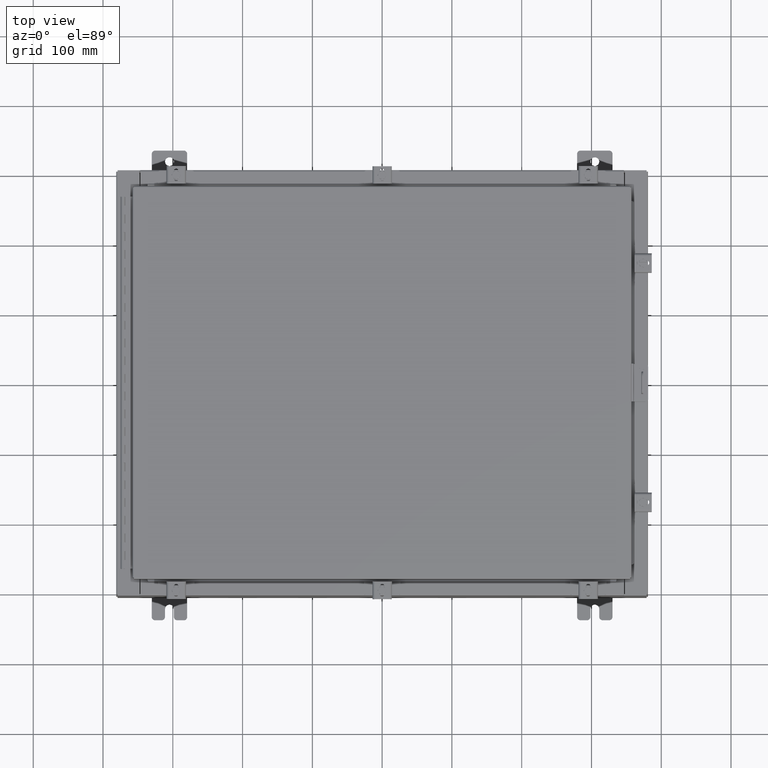
[diagram: clean part render]
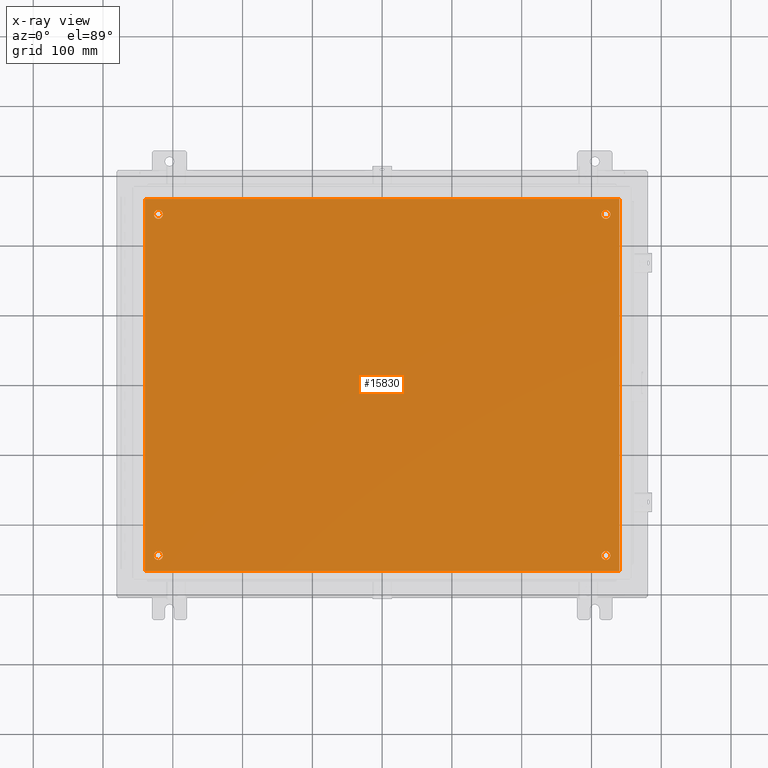
[diagram: x-ray — body ghosted, one internal face saturated and labeled with its STEP entity id]
A machine part, top view, then the same camera in x-ray: the body is ghosted and one INTERNAL B-rep face — a face not visible from any outside direction — is saturated and labeled: STEP entity #15830.
In plain terms, the highlighted planar face has unit normal (0, 0, -1).
Its self-contained STEP definition (entity closure, byte-faithful):
#97 = LINE ( 'NONE', #28424, #13458 ) ;
#567 = VECTOR ( 'NONE', #14439, 39.37007874015748100 ) ;
#1053 = EDGE_CURVE ( 'NONE', #12233, #16172, #19719, .T. ) ;
#1755 = CARTESIAN_POINT ( 'NONE',  ( -12.87499999999999600, -9.625000000000001800, -0.1039999999999999800 ) ) ;
#2405 = EDGE_LOOP ( 'NONE', ( #9861, #17814 ) ) ;
#2578 = CARTESIAN_POINT ( 'NONE',  ( -12.62499999999999800, 9.625000000000001800, -0.1039999999999999800 ) ) ;
#2631 = FACE_BOUND ( 'NONE', #22050, .T. ) ;
#2815 = ORIENTED_EDGE ( 'NONE', *, *, #7326, .F. ) ;
#2914 = ORIENTED_EDGE ( 'NONE', *, *, #15594, .T. ) ;
#3113 = AXIS2_PLACEMENT_3D ( 'NONE', #2578, #20107, #5090 ) ;
#3431 = CARTESIAN_POINT ( 'NONE',  ( -13.38299999999999900, 10.50000000000000200, -0.1040000000000041900 ) ) ;
#3952 = DIRECTION ( 'NONE',  ( -0.0000000000000000000, -0.0000000000000000000, 1.000000000000000000 ) ) ;
#4044 = VERTEX_POINT ( 'NONE', #3431 ) ;
#4961 = CARTESIAN_POINT ( 'NONE',  ( -13.38299999999999900, -10.50000000000000000, -0.1040000000000041900 ) ) ;
#5090 = DIRECTION ( 'NONE',  ( -1.000000000000000000, 0.0000000000000000000, 0.0000000000000000000 ) ) ;
#5153 = ORIENTED_EDGE ( 'NONE', *, *, #7400, .F. ) ;
#5259 = CARTESIAN_POINT ( 'NONE',  ( -12.87499999999999600, 9.625000000000001800, -0.1039999999999999800 ) ) ;
#5874 = EDGE_LOOP ( 'NONE', ( #30351, #8862 ) ) ;
#6597 = CIRCLE ( 'NONE', #3113, 0.2499999999999987000 ) ;
#6606 = DIRECTION ( 'NONE',  ( -0.0000000000000000000, -0.0000000000000000000, 1.000000000000000000 ) ) ;
#7056 = CARTESIAN_POINT ( 'NONE',  ( -12.62499999999999800, 9.625000000000001800, -0.1039999999999999800 ) ) ;
#7326 = EDGE_CURVE ( 'NONE', #4044, #29572, #16223, .T. ) ;
#7400 = EDGE_CURVE ( 'NONE', #29572, #31942, #27292, .T. ) ;
#7433 = CARTESIAN_POINT ( 'NONE',  ( 12.87499999999999600, -9.625000000000001800, -0.1039999999999999800 ) ) ;
#7793 = PLANE ( 'NONE',  #23718 ) ;
#8011 = AXIS2_PLACEMENT_3D ( 'NONE', #10245, #27846, #12789 ) ;
#8286 = CIRCLE ( 'NONE', #21149, 0.2499999999999987000 ) ;
#8517 = FACE_OUTER_BOUND ( 'NONE', #21553, .T. ) ;
#8862 = ORIENTED_EDGE ( 'NONE', *, *, #15207, .T. ) ;
#9051 = DIRECTION ( 'NONE',  ( 0.0000000000000000000, 1.000000000000000000, 0.0000000000000000000 ) ) ;
#9296 = CARTESIAN_POINT ( 'NONE',  ( 13.38300000000000100, -10.50000000000000000, -0.1039999999999999800 ) ) ;
#9588 = VECTOR ( 'NONE', #18136, 39.37007874015748100 ) ;
#9591 = DIRECTION ( 'NONE',  ( -1.000000000000000000, 0.0000000000000000000, 0.0000000000000000000 ) ) ;
#9599 = EDGE_CURVE ( 'NONE', #16172, #12233, #29313, .T. ) ;
#9861 = ORIENTED_EDGE ( 'NONE', *, *, #26238, .T. ) ;
#10245 = CARTESIAN_POINT ( 'NONE',  ( 12.62499999999999800, 9.625000000000001800, -0.1039999999999999800 ) ) ;
#10297 = CARTESIAN_POINT ( 'NONE',  ( 0.0000000000000000000, 0.0000000000000000000, -0.1039999999999999800 ) ) ;
#10756 = AXIS2_PLACEMENT_3D ( 'NONE', #11829, #29807, #27951 ) ;
#10833 = ORIENTED_EDGE ( 'NONE', *, *, #1053, .T. ) ;
#11068 = CARTESIAN_POINT ( 'NONE',  ( -12.37499999999999800, 9.625000000000001800, -0.1039999999999999800 ) ) ;
#11826 = VERTEX_POINT ( 'NONE', #5259 ) ;
#11829 = CARTESIAN_POINT ( 'NONE',  ( 12.62499999999999800, 9.625000000000001800, -0.1039999999999999800 ) ) ;
#11883 = CARTESIAN_POINT ( 'NONE',  ( 12.62499999999999800, -9.625000000000001800, -0.1039999999999999800 ) ) ;
#12233 = VERTEX_POINT ( 'NONE', #17559 ) ;
#12789 = DIRECTION ( 'NONE',  ( -1.000000000000000000, 0.0000000000000000000, 0.0000000000000000000 ) ) ;
#12915 = ORIENTED_EDGE ( 'NONE', *, *, #9599, .T. ) ;
#13361 = DIRECTION ( 'NONE',  ( -1.000000000000000000, -0.0000000000000000000, -0.0000000000000000000 ) ) ;
#13458 = VECTOR ( 'NONE', #13361, 39.37007874015748100 ) ;
#13799 = VERTEX_POINT ( 'NONE', #1755 ) ;
#14016 = DIRECTION ( 'NONE',  ( -0.0000000000000000000, -0.0000000000000000000, 1.000000000000000000 ) ) ;
#14207 = EDGE_LOOP ( 'NONE', ( #2914, #27636 ) ) ;
#14363 = CARTESIAN_POINT ( 'NONE',  ( -12.37499999999999800, -9.625000000000001800, -0.1039999999999999800 ) ) ;
#14426 = DIRECTION ( 'NONE',  ( -1.000000000000000000, 0.0000000000000000000, 0.0000000000000000000 ) ) ;
#14439 = DIRECTION ( 'NONE',  ( 1.000000000000000000, 0.0000000000000000000, 0.0000000000000000000 ) ) ;
#14593 = CARTESIAN_POINT ( 'NONE',  ( 12.37499999999999800, -9.625000000000001800, -0.1039999999999999800 ) ) ;
#14992 = CARTESIAN_POINT ( 'NONE',  ( -13.49999999999999500, -10.50000000000000000, -0.1039999999999999800 ) ) ;
#15041 = VECTOR ( 'NONE', #9051, 39.37007874015748100 ) ;
#15163 = FACE_BOUND ( 'NONE', #2405, .T. ) ;
#15207 = EDGE_CURVE ( 'NONE', #11826, #31495, #6597, .T. ) ;
#15217 = DIRECTION ( 'NONE',  ( 0.0000000000000000000, 0.0000000000000000000, -1.000000000000000000 ) ) ;
#15594 = EDGE_CURVE ( 'NONE', #22065, #21324, #28989, .T. ) ;
#15830 = ADVANCED_FACE ( 'NONE', ( #15163, #27793, #2631, #28565, #8517 ), #7793, .T. ) ;
#15832 = LINE ( 'NONE', #31576, #15041 ) ;
#16172 = VERTEX_POINT ( 'NONE', #26984 ) ;
#16223 = LINE ( 'NONE', #18363, #9588 ) ;
#17559 = CARTESIAN_POINT ( 'NONE',  ( 12.37499999999999800, 9.625000000000001800, -0.1039999999999999800 ) ) ;
#17814 = ORIENTED_EDGE ( 'NONE', *, *, #22485, .T. ) ;
#18136 = DIRECTION ( 'NONE',  ( 0.0000000000000000000, -1.000000000000000000, 0.0000000000000000000 ) ) ;
#18363 = CARTESIAN_POINT ( 'NONE',  ( -13.38299999999999900, 10.50000000000000400, -0.1040000000000041900 ) ) ;
#18381 = ORIENTED_EDGE ( 'NONE', *, *, #32414, .F. ) ;
#18513 = AXIS2_PLACEMENT_3D ( 'NONE', #18933, #3952, #21513 ) ;
#18765 = AXIS2_PLACEMENT_3D ( 'NONE', #11883, #29487, #14426 ) ;
#18933 = CARTESIAN_POINT ( 'NONE',  ( -12.62499999999999800, -9.625000000000001800, -0.1039999999999999800 ) ) ;
#19270 = AXIS2_PLACEMENT_3D ( 'NONE', #21643, #6606, #24156 ) ;
#19682 = VERTEX_POINT ( 'NONE', #14363 ) ;
#19719 = CIRCLE ( 'NONE', #10756, 0.2499999999999987000 ) ;
#20107 = DIRECTION ( 'NONE',  ( -0.0000000000000000000, -0.0000000000000000000, 1.000000000000000000 ) ) ;
#20417 = EDGE_CURVE ( 'NONE', #31495, #11826, #8286, .T. ) ;
#21149 = AXIS2_PLACEMENT_3D ( 'NONE', #7056, #24623, #9591 ) ;
#21164 = CIRCLE ( 'NONE', #18765, 0.2499999999999987000 ) ;
#21324 = VERTEX_POINT ( 'NONE', #14593 ) ;
#21513 = DIRECTION ( 'NONE',  ( -1.000000000000000000, 0.0000000000000000000, 0.0000000000000000000 ) ) ;
#21553 = EDGE_LOOP ( 'NONE', ( #5153, #2815, #23023, #18381 ) ) ;
#21643 = CARTESIAN_POINT ( 'NONE',  ( 12.62499999999999800, -9.625000000000001800, -0.1039999999999999800 ) ) ;
#22050 = EDGE_LOOP ( 'NONE', ( #12915, #10833 ) ) ;
#22065 = VERTEX_POINT ( 'NONE', #7433 ) ;
#22485 = EDGE_CURVE ( 'NONE', #13799, #19682, #30087, .T. ) ;
#23023 = ORIENTED_EDGE ( 'NONE', *, *, #24067, .F. ) ;
#23718 = AXIS2_PLACEMENT_3D ( 'NONE', #10297, #15217, #30421 ) ;
#24067 = EDGE_CURVE ( 'NONE', #24391, #4044, #97, .T. ) ;
#24156 = DIRECTION ( 'NONE',  ( -1.000000000000000000, 0.0000000000000000000, 0.0000000000000000000 ) ) ;
#24391 = VERTEX_POINT ( 'NONE', #24629 ) ;
#24562 = AXIS2_PLACEMENT_3D ( 'NONE', #29060, #14016, #31563 ) ;
#24623 = DIRECTION ( 'NONE',  ( -0.0000000000000000000, -0.0000000000000000000, 1.000000000000000000 ) ) ;
#24629 = CARTESIAN_POINT ( 'NONE',  ( 13.38300000000000400, 10.50000000000000200, -0.1039999999999999800 ) ) ;
#26238 = EDGE_CURVE ( 'NONE', #19682, #13799, #27867, .T. ) ;
#26984 = CARTESIAN_POINT ( 'NONE',  ( 12.87499999999999600, 9.625000000000001800, -0.1039999999999999800 ) ) ;
#27026 = EDGE_CURVE ( 'NONE', #21324, #22065, #21164, .T. ) ;
#27292 = LINE ( 'NONE', #14992, #567 ) ;
#27636 = ORIENTED_EDGE ( 'NONE', *, *, #27026, .T. ) ;
#27793 = FACE_BOUND ( 'NONE', #14207, .T. ) ;
#27846 = DIRECTION ( 'NONE',  ( -0.0000000000000000000, -0.0000000000000000000, 1.000000000000000000 ) ) ;
#27867 = CIRCLE ( 'NONE', #18513, 0.2499999999999987000 ) ;
#27951 = DIRECTION ( 'NONE',  ( -1.000000000000000000, 0.0000000000000000000, 0.0000000000000000000 ) ) ;
#28424 = CARTESIAN_POINT ( 'NONE',  ( -13.50000000000000000, 10.50000000000000200, -0.1039999999999999800 ) ) ;
#28565 = FACE_BOUND ( 'NONE', #5874, .T. ) ;
#28989 = CIRCLE ( 'NONE', #19270, 0.2499999999999987000 ) ;
#29060 = CARTESIAN_POINT ( 'NONE',  ( -12.62499999999999800, -9.625000000000001800, -0.1039999999999999800 ) ) ;
#29313 = CIRCLE ( 'NONE', #8011, 0.2499999999999987000 ) ;
#29487 = DIRECTION ( 'NONE',  ( -0.0000000000000000000, -0.0000000000000000000, 1.000000000000000000 ) ) ;
#29572 = VERTEX_POINT ( 'NONE', #4961 ) ;
#29807 = DIRECTION ( 'NONE',  ( -0.0000000000000000000, -0.0000000000000000000, 1.000000000000000000 ) ) ;
#30087 = CIRCLE ( 'NONE', #24562, 0.2499999999999987000 ) ;
#30351 = ORIENTED_EDGE ( 'NONE', *, *, #20417, .T. ) ;
#30421 = DIRECTION ( 'NONE',  ( -1.000000000000000000, 0.0000000000000000000, -0.0000000000000000000 ) ) ;
#31495 = VERTEX_POINT ( 'NONE', #11068 ) ;
#31563 = DIRECTION ( 'NONE',  ( -1.000000000000000000, 0.0000000000000000000, 0.0000000000000000000 ) ) ;
#31576 = CARTESIAN_POINT ( 'NONE',  ( 13.38300000000000300, -10.50000000000000200, -0.1040000000000009100 ) ) ;
#31942 = VERTEX_POINT ( 'NONE', #9296 ) ;
#32414 = EDGE_CURVE ( 'NONE', #31942, #24391, #15832, .T. ) ;